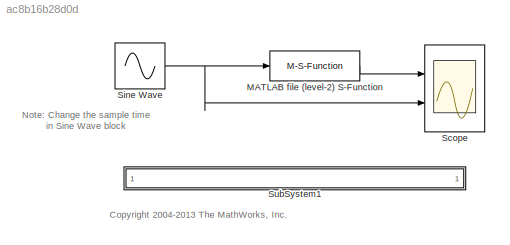
MODEL slx_ac8b16b28d0d
KIND model
CONFIG AbsTol = auto
CONFIG EnableMultiTasking = on
CONFIG FixedStep = auto
CONFIG MaxStep = 0.05
CONFIG MinStep = auto
CONFIG RelTol = 1e-3
CONFIG SampleTimeConstraint = Unconstrained
CONFIG SolverName = ode45
CONFIG StartTime = 0.0
CONFIG StopTime = 10.0
BLOCK [M-S-Function] MATLAB file (level-2) S-Function
  FunctionName = msfcn_unit_delay
  Parameters = ic
  Ports = [1, 1]
BLOCK [Scope] Scope
  Floating = off
  NumInputPorts = 2
  Ports = [2]
  ScopeSpecificationString = Simulink.scopes.TimeScopeBlockCfg('CurrentConfiguration', extmgr.ConfigurationSet(extmgr.Configuration('Core','General UI',true),extmgr.Configuration('Core','Source UI',true),extmgr.Configuration('Sources','WiredSimulink',true,'DataLoggingSaveFormat','StructureWithTime','DataLoggingLimitDataPoints',true,'DataLoggingDecimation','1','DataLoggingDecimateData',true),extmgr.Configuration('Visuals','Tim...<+2390ch>
BLOCK [Sin] Sine Wave
  Amplitude = 2
  Ports = [0, 1]
  SampleTime = 0
BLOCK [SubSystem] SubSystem1
  AttributesFormatString = \n
  OpenFcn = sfundemo_openfcn
  Ports = []
  RequestExecContextInheritance = off
ANNOTATION (root): <copyright redacted>
ANNOTATION (root): Note: Change the sample time in Sine Wave block
LINE MATLAB file (level-2) S-Function:1 -> Scope:1
NET Sine Wave:1 -> MATLAB file (level-2) S-Function:1, Scope:2
note: NET lines group one-source signal fan-out (src -> all destinations, sorted); 1:1 wires keep LINE
